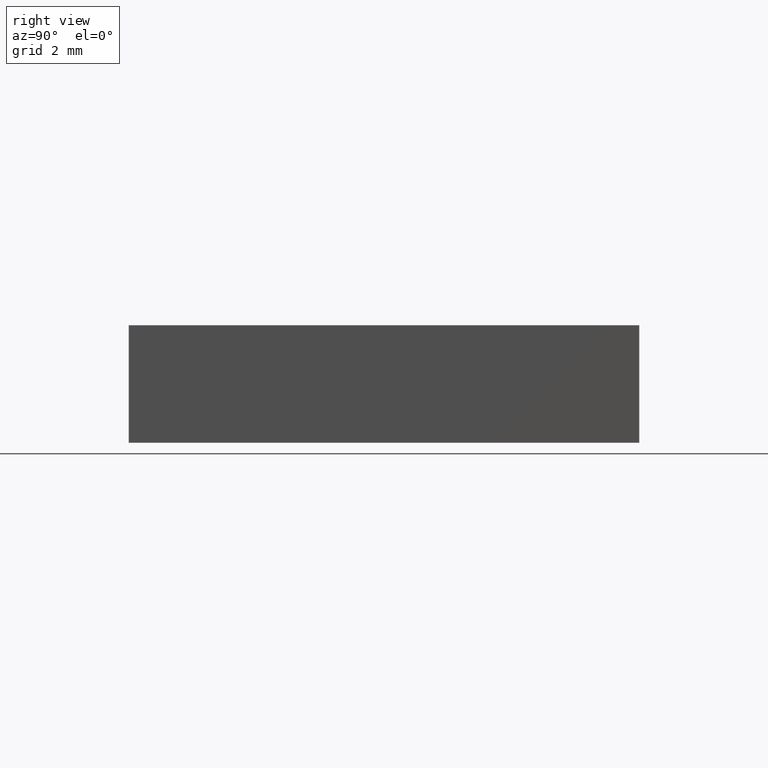
[diagram: clean part render]
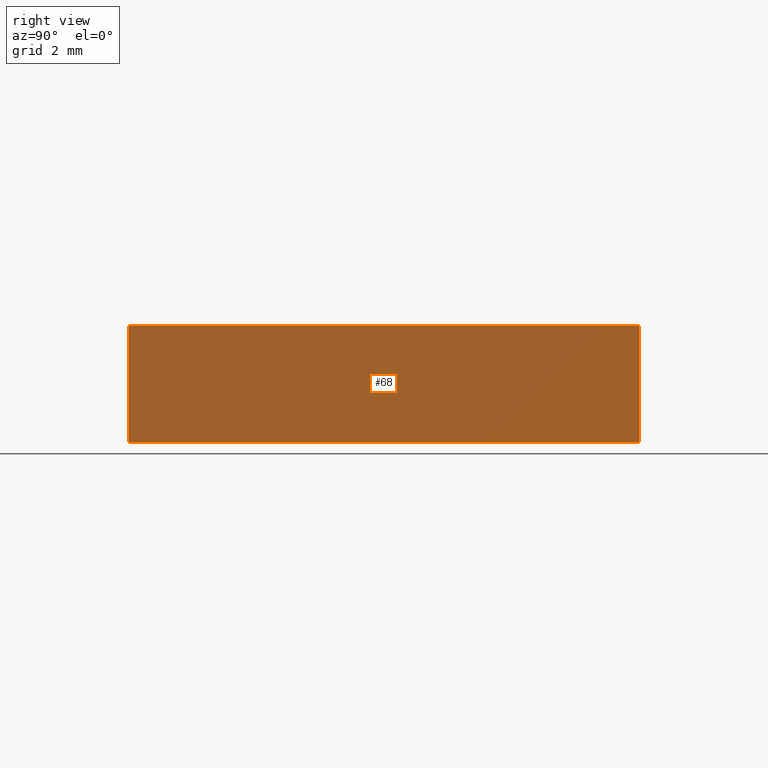
[diagram: same view with one face highlighted and labeled with its STEP entity id]
A machine part, right view. The second image highlights one B-rep face of the part: STEP entity #68.
In plain terms, the highlighted planar face has unit normal (-1, -0, 0).
Its self-contained STEP definition (entity closure, byte-faithful):
#3 = ORIENTED_EDGE ( 'NONE', *, *, #133, .F. ) ;
#8 = DIRECTION ( 'NONE',  ( 6.938893903907232300E-016, -1.000000000000000000, 0.0000000000000000000 ) ) ;
#10 = CARTESIAN_POINT ( 'NONE',  ( 45.49917431035402900, 29.62529673381063600, 0.0000000000000000000 ) ) ;
#15 = LINE ( 'NONE', #118, #176 ) ;
#20 = CARTESIAN_POINT ( 'NONE',  ( 45.49917431035402900, 29.62529673381063600, 2.299999999999999800 ) ) ;
#32 = LINE ( 'NONE', #131, #156 ) ;
#37 = DIRECTION ( 'NONE',  ( -1.000000000000000000, -6.938893903907232300E-016, 0.0000000000000000000 ) ) ;
#55 = DIRECTION ( 'NONE',  ( -0.0000000000000000000, -0.0000000000000000000, -1.000000000000000000 ) ) ;
#67 = ORIENTED_EDGE ( 'NONE', *, *, #150, .T. ) ;
#68 = ADVANCED_FACE ( 'NONE', ( #113 ), #177, .F. ) ;
#72 = CARTESIAN_POINT ( 'NONE',  ( 45.49917431035403600, 19.62529673381063900, 2.299999999999999800 ) ) ;
#77 = AXIS2_PLACEMENT_3D ( 'NONE', #20, #37, #8 ) ;
#80 = VERTEX_POINT ( 'NONE', #72 ) ;
#81 = EDGE_CURVE ( 'NONE', #191, #139, #165, .T. ) ;
#97 = VERTEX_POINT ( 'NONE', #101 ) ;
#101 = CARTESIAN_POINT ( 'NONE',  ( 45.49917431035402900, 29.62529673381063600, 2.299999999999999800 ) ) ;
#109 = DIRECTION ( 'NONE',  ( -6.938893903907232300E-016, 1.000000000000000000, -0.0000000000000000000 ) ) ;
#113 = FACE_OUTER_BOUND ( 'NONE', #148, .T. ) ;
#118 = CARTESIAN_POINT ( 'NONE',  ( 45.49917431035403600, 19.62529673381063900, 2.299999999999999800 ) ) ;
#124 = LINE ( 'NONE', #173, #125 ) ;
#125 = VECTOR ( 'NONE', #151, 1000.000000000000000 ) ;
#131 = CARTESIAN_POINT ( 'NONE',  ( 45.49917431035402900, 29.62529673381063600, 2.299999999999999800 ) ) ;
#133 = EDGE_CURVE ( 'NONE', #80, #97, #32, .T. ) ;
#139 = VERTEX_POINT ( 'NONE', #10 ) ;
#144 = CARTESIAN_POINT ( 'NONE',  ( 45.49917431035402900, 29.62529673381063600, 0.0000000000000000000 ) ) ;
#147 = CARTESIAN_POINT ( 'NONE',  ( 45.49917431035403600, 19.62529673381063900, 0.0000000000000000000 ) ) ;
#148 = EDGE_LOOP ( 'NONE', ( #154, #169, #3, #67 ) ) ;
#150 = EDGE_CURVE ( 'NONE', #80, #191, #15, .T. ) ;
#151 = DIRECTION ( 'NONE',  ( -0.0000000000000000000, -0.0000000000000000000, -1.000000000000000000 ) ) ;
#154 = ORIENTED_EDGE ( 'NONE', *, *, #81, .T. ) ;
#156 = VECTOR ( 'NONE', #109, 1000.000000000000000 ) ;
#165 = LINE ( 'NONE', #144, #172 ) ;
#169 = ORIENTED_EDGE ( 'NONE', *, *, #178, .F. ) ;
#172 = VECTOR ( 'NONE', #181, 1000.000000000000000 ) ;
#173 = CARTESIAN_POINT ( 'NONE',  ( 45.49917431035402900, 29.62529673381063600, 2.299999999999999800 ) ) ;
#176 = VECTOR ( 'NONE', #55, 1000.000000000000000 ) ;
#177 = PLANE ( 'NONE',  #77 ) ;
#178 = EDGE_CURVE ( 'NONE', #97, #139, #124, .T. ) ;
#181 = DIRECTION ( 'NONE',  ( -6.938893903907232300E-016, 1.000000000000000000, -0.0000000000000000000 ) ) ;
#191 = VERTEX_POINT ( 'NONE', #147 ) ;